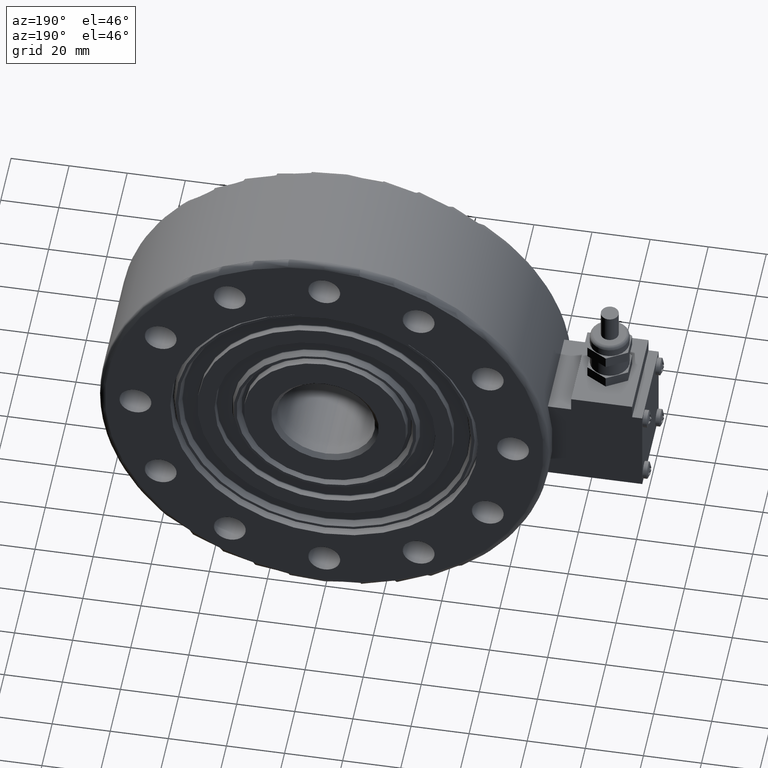
[diagram: clean part render]
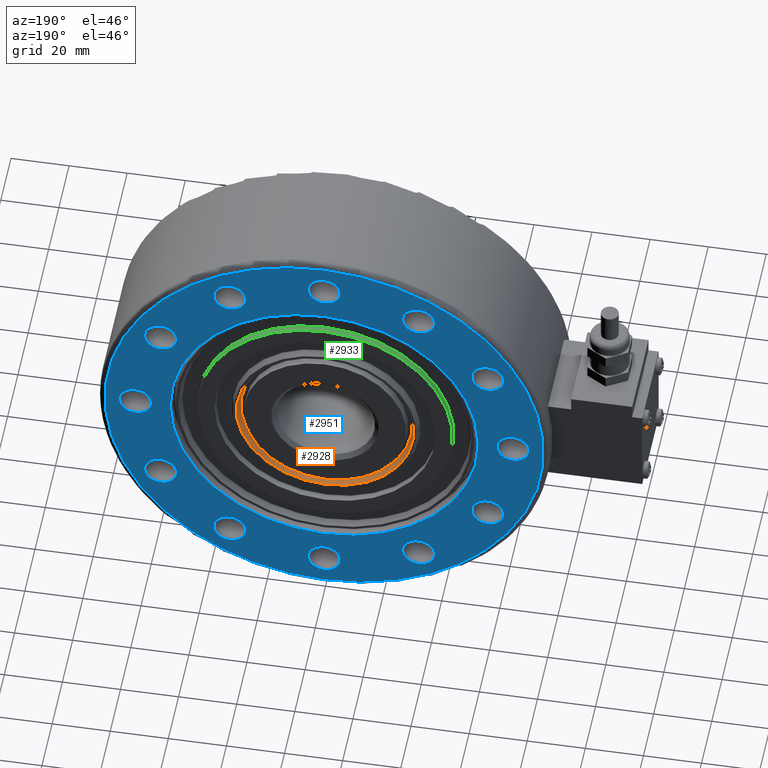
[diagram: same view with three faces highlighted in distinct colors, each labeled with its STEP entity id]
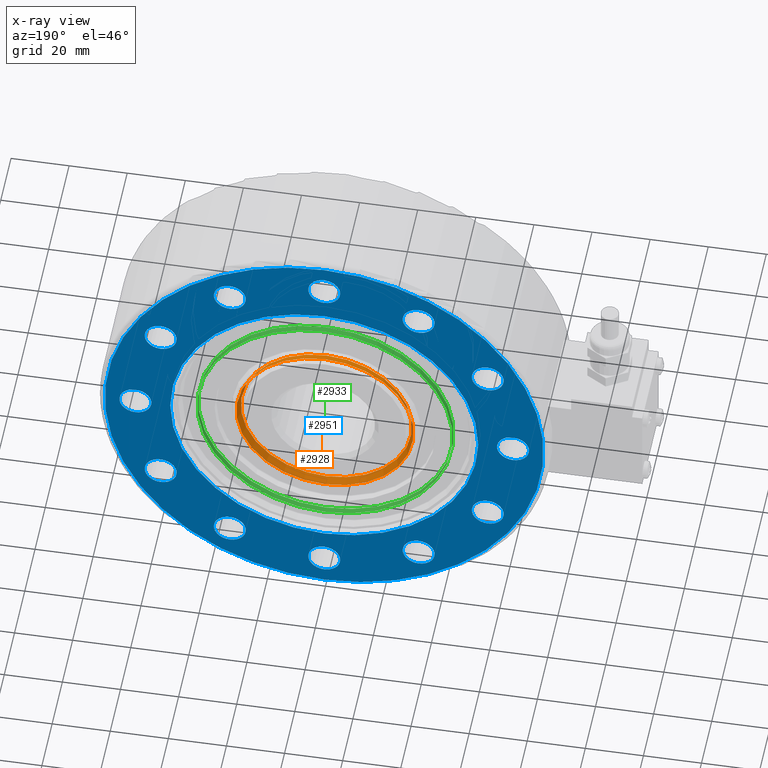
[diagram: x-ray of the same camera — body ghosted, the three highlighted faces saturated]
A machine part, auxiliary view with three faces highlighted in distinct colors.
The next image is the same camera in x-ray (body ghosted, the three faces saturated) — at least one of them is partly hidden behind the body in this view.
Their STEP definitions:

[orange] entity #2928 — the highlighted conical surface has half-angle 20 deg.
#177=CONICAL_SURFACE('',#3256,30.5,0.349065850398859);
#296=FACE_OUTER_BOUND('',#452,.T.);
#452=EDGE_LOOP('',(#2229,#2230,#2231,#2232,#2233,#2234));
#652=LINE('',#4829,#845);
#845=VECTOR('',#3843,30.5);
#1162=CIRCLE('',#3254,29.4799348219743);
#1163=CIRCLE('',#3255,29.4799348219743);
#1164=CIRCLE('',#3257,30.5);
#1165=CIRCLE('',#3258,30.5);
#1353=VERTEX_POINT('',#4822);
#1354=VERTEX_POINT('',#4824);
#1355=VERTEX_POINT('',#4828);
#1356=VERTEX_POINT('',#4830);
#1717=EDGE_CURVE('',#1353,#1354,#1162,.T.);
#1718=EDGE_CURVE('',#1354,#1353,#1163,.T.);
#1719=EDGE_CURVE('',#1353,#1355,#652,.T.);
#1720=EDGE_CURVE('',#1355,#1356,#1164,.T.);
#1721=EDGE_CURVE('',#1356,#1355,#1165,.T.);
#2229=ORIENTED_EDGE('',*,*,#1718,.F.);
#2230=ORIENTED_EDGE('',*,*,#1717,.F.);
#2231=ORIENTED_EDGE('',*,*,#1719,.T.);
#2232=ORIENTED_EDGE('',*,*,#1720,.T.);
#2233=ORIENTED_EDGE('',*,*,#1721,.T.);
#2234=ORIENTED_EDGE('',*,*,#1719,.F.);
#2928=ADVANCED_FACE('',(#296),#177,.F.);
#3254=AXIS2_PLACEMENT_3D('',#4825,#3837,#3838);
#3255=AXIS2_PLACEMENT_3D('',#4826,#3839,#3840);
#3256=AXIS2_PLACEMENT_3D('',#4827,#3841,#3842);
#3257=AXIS2_PLACEMENT_3D('',#4831,#3844,#3845);
#3258=AXIS2_PLACEMENT_3D('',#4832,#3846,#3847);
#3837=DIRECTION('center_axis',(0.,1.,0.));
#3838=DIRECTION('ref_axis',(0.,0.,1.));
#3839=DIRECTION('center_axis',(0.,1.,0.));
#3840=DIRECTION('ref_axis',(0.,0.,1.));
#3841=DIRECTION('center_axis',(0.,1.,0.));
#3842=DIRECTION('ref_axis',(0.,0.,1.));
#3843=DIRECTION('',(-4.18853873767691E-17,0.939692620785911,-0.342020143325662));
#3844=DIRECTION('center_axis',(0.,1.,0.));
#3845=DIRECTION('ref_axis',(0.,0.,1.));
#3846=DIRECTION('center_axis',(0.,1.,0.));
#3847=DIRECTION('ref_axis',(0.,0.,1.));
#4822=CARTESIAN_POINT('',(-3.61025078188034E-15,18.1973939570023,-29.4799348219743));
#4824=CARTESIAN_POINT('',(0.,18.1973939570023,29.4799348219743));
#4825=CARTESIAN_POINT('Origin',(0.,18.1973939570023,0.));
#4826=CARTESIAN_POINT('Origin',(0.,18.1973939570023,0.));
#4827=CARTESIAN_POINT('Origin',(0.,21.,0.));
#4828=CARTESIAN_POINT('',(-3.73517273739943E-15,21.,-30.5));
#4829=CARTESIAN_POINT('',(-3.73517273739943E-15,21.,-30.5));
#4830=CARTESIAN_POINT('',(0.,21.,30.5));
#4831=CARTESIAN_POINT('Origin',(0.,21.,0.));
#4832=CARTESIAN_POINT('Origin',(0.,21.,0.));

[blue] entity #2951 — the highlighted planar face has unit normal (0, -1, 0).
#29=PLANE('',#3317);
#133=FACE_BOUND('',#494,.T.);
#134=FACE_BOUND('',#495,.T.);
#135=FACE_BOUND('',#496,.T.);
#136=FACE_BOUND('',#497,.T.);
#137=FACE_BOUND('',#498,.T.);
#138=FACE_BOUND('',#499,.T.);
#139=FACE_BOUND('',#500,.T.);
#140=FACE_BOUND('',#501,.T.);
#141=FACE_BOUND('',#502,.T.);
#142=FACE_BOUND('',#503,.T.);
#143=FACE_BOUND('',#504,.T.);
#144=FACE_BOUND('',#505,.T.);
#145=FACE_BOUND('',#506,.T.);
#319=FACE_OUTER_BOUND('',#493,.T.);
#493=EDGE_LOOP('',(#2389,#2390));
#494=EDGE_LOOP('',(#2391,#2392));
#495=EDGE_LOOP('',(#2393,#2394));
#496=EDGE_LOOP('',(#2395,#2396));
#497=EDGE_LOOP('',(#2397,#2398));
#498=EDGE_LOOP('',(#2399,#2400));
#499=EDGE_LOOP('',(#2401,#2402));
#500=EDGE_LOOP('',(#2403,#2404));
#501=EDGE_LOOP('',(#2405,#2406));
#502=EDGE_LOOP('',(#2407,#2408));
#503=EDGE_LOOP('',(#2409,#2410));
#504=EDGE_LOOP('',(#2411,#2412));
#505=EDGE_LOOP('',(#2413,#2414));
#506=EDGE_LOOP('',(#2415,#2416));
#1011=CIRCLE('',#3061,53.);
#1012=CIRCLE('',#3062,53.);
#1017=CIRCLE('',#3068,75.5);
#1018=CIRCLE('',#3069,75.5);
#1057=CIRCLE('',#3121,5.5);
#1058=CIRCLE('',#3122,5.5);
#1061=CIRCLE('',#3126,5.5);
#1062=CIRCLE('',#3127,5.5);
#1065=CIRCLE('',#3131,5.5000000000018);
#1066=CIRCLE('',#3132,5.5000000000018);
#1069=CIRCLE('',#3136,5.50000000000215);
#1070=CIRCLE('',#3137,5.50000000000215);
#1073=CIRCLE('',#3141,5.50000000000229);
#1074=CIRCLE('',#3142,5.50000000000229);
#1077=CIRCLE('',#3146,5.50000000000218);
#1078=CIRCLE('',#3147,5.50000000000218);
#1081=CIRCLE('',#3151,5.50000000000188);
#1082=CIRCLE('',#3152,5.50000000000188);
#1085=CIRCLE('',#3156,5.50000000000138);
#1086=CIRCLE('',#3157,5.50000000000138);
#1089=CIRCLE('',#3161,5.5);
#1090=CIRCLE('',#3162,5.5);
#1093=CIRCLE('',#3166,5.5);
#1094=CIRCLE('',#3167,5.5);
#1097=CIRCLE('',#3171,5.50000000000001);
#1098=CIRCLE('',#3172,5.50000000000001);
#1101=CIRCLE('',#3176,5.5);
#1102=CIRCLE('',#3177,5.5);
#1209=VERTEX_POINT('',#4311);
#1210=VERTEX_POINT('',#4313);
#1213=VERTEX_POINT('',#4322);
#1214=VERTEX_POINT('',#4324);
#1257=VERTEX_POINT('',#4574);
#1258=VERTEX_POINT('',#4576);
#1261=VERTEX_POINT('',#4584);
#1262=VERTEX_POINT('',#4586);
#1265=VERTEX_POINT('',#4594);
#1266=VERTEX_POINT('',#4596);
#1269=VERTEX_POINT('',#4604);
#1270=VERTEX_POINT('',#4606);
#1273=VERTEX_POINT('',#4614);
#1274=VERTEX_POINT('',#4616);
#1277=VERTEX_POINT('',#4624);
#1278=VERTEX_POINT('',#4626);
#1281=VERTEX_POINT('',#4634);
#1282=VERTEX_POINT('',#4636);
#1285=VERTEX_POINT('',#4644);
#1286=VERTEX_POINT('',#4646);
#1289=VERTEX_POINT('',#4654);
#1290=VERTEX_POINT('',#4656);
#1293=VERTEX_POINT('',#4664);
#1294=VERTEX_POINT('',#4666);
#1297=VERTEX_POINT('',#4674);
#1298=VERTEX_POINT('',#4676);
#1301=VERTEX_POINT('',#4684);
#1302=VERTEX_POINT('',#4686);
#1530=EDGE_CURVE('',#1209,#1210,#1011,.T.);
#1531=EDGE_CURVE('',#1210,#1209,#1012,.T.);
#1536=EDGE_CURVE('',#1214,#1213,#1017,.T.);
#1537=EDGE_CURVE('',#1213,#1214,#1018,.T.);
#1593=EDGE_CURVE('',#1257,#1258,#1057,.T.);
#1594=EDGE_CURVE('',#1258,#1257,#1058,.T.);
#1598=EDGE_CURVE('',#1261,#1262,#1061,.T.);
#1599=EDGE_CURVE('',#1262,#1261,#1062,.T.);
#1603=EDGE_CURVE('',#1265,#1266,#1065,.T.);
#1604=EDGE_CURVE('',#1266,#1265,#1066,.T.);
#1608=EDGE_CURVE('',#1269,#1270,#1069,.T.);
#1609=EDGE_CURVE('',#1270,#1269,#1070,.T.);
#1613=EDGE_CURVE('',#1273,#1274,#1073,.T.);
#1614=EDGE_CURVE('',#1274,#1273,#1074,.T.);
#1618=EDGE_CURVE('',#1277,#1278,#1077,.T.);
#1619=EDGE_CURVE('',#1278,#1277,#1078,.T.);
#1623=EDGE_CURVE('',#1281,#1282,#1081,.T.);
#1624=EDGE_CURVE('',#1282,#1281,#1082,.T.);
#1628=EDGE_CURVE('',#1285,#1286,#1085,.T.);
#1629=EDGE_CURVE('',#1286,#1285,#1086,.T.);
#1633=EDGE_CURVE('',#1289,#1290,#1089,.T.);
#1634=EDGE_CURVE('',#1290,#1289,#1090,.T.);
#1638=EDGE_CURVE('',#1293,#1294,#1093,.T.);
#1639=EDGE_CURVE('',#1294,#1293,#1094,.T.);
#1643=EDGE_CURVE('',#1297,#1298,#1097,.T.);
#1644=EDGE_CURVE('',#1298,#1297,#1098,.T.);
#1648=EDGE_CURVE('',#1301,#1302,#1101,.T.);
#1649=EDGE_CURVE('',#1302,#1301,#1102,.T.);
#2389=ORIENTED_EDGE('',*,*,#1536,.T.);
#2390=ORIENTED_EDGE('',*,*,#1537,.T.);
#2391=ORIENTED_EDGE('',*,*,#1594,.F.);
#2392=ORIENTED_EDGE('',*,*,#1593,.F.);
#2393=ORIENTED_EDGE('',*,*,#1599,.F.);
#2394=ORIENTED_EDGE('',*,*,#1598,.F.);
#2395=ORIENTED_EDGE('',*,*,#1604,.F.);
#2396=ORIENTED_EDGE('',*,*,#1603,.F.);
#2397=ORIENTED_EDGE('',*,*,#1609,.F.);
#2398=ORIENTED_EDGE('',*,*,#1608,.F.);
#2399=ORIENTED_EDGE('',*,*,#1614,.F.);
#2400=ORIENTED_EDGE('',*,*,#1613,.F.);
#2401=ORIENTED_EDGE('',*,*,#1619,.F.);
#2402=ORIENTED_EDGE('',*,*,#1618,.F.);
#2403=ORIENTED_EDGE('',*,*,#1624,.F.);
#2404=ORIENTED_EDGE('',*,*,#1623,.F.);
#2405=ORIENTED_EDGE('',*,*,#1629,.F.);
#2406=ORIENTED_EDGE('',*,*,#1628,.F.);
#2407=ORIENTED_EDGE('',*,*,#1634,.F.);
#2408=ORIENTED_EDGE('',*,*,#1633,.F.);
#2409=ORIENTED_EDGE('',*,*,#1639,.F.);
#2410=ORIENTED_EDGE('',*,*,#1638,.F.);
#2411=ORIENTED_EDGE('',*,*,#1644,.F.);
#2412=ORIENTED_EDGE('',*,*,#1643,.F.);
#2413=ORIENTED_EDGE('',*,*,#1649,.F.);
#2414=ORIENTED_EDGE('',*,*,#1648,.F.);
#2415=ORIENTED_EDGE('',*,*,#1531,.F.);
#2416=ORIENTED_EDGE('',*,*,#1530,.F.);
#2951=ADVANCED_FACE('',(#319,#133,#134,#135,#136,#137,#138,#139,#140,#141,
#142,#143,#144,#145),#29,.F.);
#3061=AXIS2_PLACEMENT_3D('',#4314,#3421,#3422);
#3062=AXIS2_PLACEMENT_3D('',#4315,#3423,#3424);
#3068=AXIS2_PLACEMENT_3D('',#4325,#3435,#3436);
#3069=AXIS2_PLACEMENT_3D('',#4326,#3437,#3438);
#3121=AXIS2_PLACEMENT_3D('',#4577,#3552,#3553);
#3122=AXIS2_PLACEMENT_3D('',#4578,#3554,#3555);
#3126=AXIS2_PLACEMENT_3D('',#4587,#3563,#3564);
#3127=AXIS2_PLACEMENT_3D('',#4588,#3565,#3566);
#3131=AXIS2_PLACEMENT_3D('',#4597,#3574,#3575);
#3132=AXIS2_PLACEMENT_3D('',#4598,#3576,#3577);
#3136=AXIS2_PLACEMENT_3D('',#4607,#3585,#3586);
#3137=AXIS2_PLACEMENT_3D('',#4608,#3587,#3588);
#3141=AXIS2_PLACEMENT_3D('',#4617,#3596,#3597);
#3142=AXIS2_PLACEMENT_3D('',#4618,#3598,#3599);
#3146=AXIS2_PLACEMENT_3D('',#4627,#3607,#3608);
#3147=AXIS2_PLACEMENT_3D('',#4628,#3609,#3610);
#3151=AXIS2_PLACEMENT_3D('',#4637,#3618,#3619);
#3152=AXIS2_PLACEMENT_3D('',#4638,#3620,#3621);
#3156=AXIS2_PLACEMENT_3D('',#4647,#3629,#3630);
#3157=AXIS2_PLACEMENT_3D('',#4648,#3631,#3632);
#3161=AXIS2_PLACEMENT_3D('',#4657,#3640,#3641);
#3162=AXIS2_PLACEMENT_3D('',#4658,#3642,#3643);
#3166=AXIS2_PLACEMENT_3D('',#4667,#3651,#3652);
#3167=AXIS2_PLACEMENT_3D('',#4668,#3653,#3654);
#3171=AXIS2_PLACEMENT_3D('',#4677,#3662,#3663);
#3172=AXIS2_PLACEMENT_3D('',#4678,#3664,#3665);
#3176=AXIS2_PLACEMENT_3D('',#4687,#3673,#3674);
#3177=AXIS2_PLACEMENT_3D('',#4688,#3675,#3676);
#3317=AXIS2_PLACEMENT_3D('',#5223,#3994,#3995);
#3421=DIRECTION('center_axis',(0.,1.,0.));
#3422=DIRECTION('ref_axis',(0.,0.,1.));
#3423=DIRECTION('center_axis',(0.,1.,0.));
#3424=DIRECTION('ref_axis',(0.,0.,1.));
#3435=DIRECTION('center_axis',(0.,1.,0.));
#3436=DIRECTION('ref_axis',(0.,0.,-1.));
#3437=DIRECTION('center_axis',(0.,1.,0.));
#3438=DIRECTION('ref_axis',(0.,0.,-1.));
#3552=DIRECTION('center_axis',(0.,1.,0.));
#3553=DIRECTION('ref_axis',(0.,0.,1.));
#3554=DIRECTION('center_axis',(0.,1.,0.));
#3555=DIRECTION('ref_axis',(0.,0.,1.));
#3563=DIRECTION('center_axis',(0.,1.,0.));
#3564=DIRECTION('ref_axis',(0.,0.,1.));
#3565=DIRECTION('center_axis',(0.,1.,0.));
#3566=DIRECTION('ref_axis',(0.,0.,1.));
#3574=DIRECTION('center_axis',(0.,1.,0.));
#3575=DIRECTION('ref_axis',(0.,0.,1.));
#3576=DIRECTION('center_axis',(0.,1.,0.));
#3577=DIRECTION('ref_axis',(0.,0.,1.));
#3585=DIRECTION('center_axis',(0.,1.,0.));
#3586=DIRECTION('ref_axis',(0.,0.,1.));
#3587=DIRECTION('center_axis',(0.,1.,0.));
#3588=DIRECTION('ref_axis',(0.,0.,1.));
#3596=DIRECTION('center_axis',(0.,1.,0.));
#3597=DIRECTION('ref_axis',(0.,0.,1.));
#3598=DIRECTION('center_axis',(0.,1.,0.));
#3599=DIRECTION('ref_axis',(0.,0.,1.));
#3607=DIRECTION('center_axis',(0.,1.,0.));
#3608=DIRECTION('ref_axis',(0.,0.,1.));
#3609=DIRECTION('center_axis',(0.,1.,0.));
#3610=DIRECTION('ref_axis',(0.,0.,1.));
#3618=DIRECTION('center_axis',(0.,1.,0.));
#3619=DIRECTION('ref_axis',(0.,0.,1.));
#3620=DIRECTION('center_axis',(0.,1.,0.));
#3621=DIRECTION('ref_axis',(0.,0.,1.));
#3629=DIRECTION('center_axis',(0.,1.,0.));
#3630=DIRECTION('ref_axis',(0.,0.,1.));
#3631=DIRECTION('center_axis',(0.,1.,0.));
#3632=DIRECTION('ref_axis',(0.,0.,1.));
#3640=DIRECTION('center_axis',(0.,1.,0.));
#3641=DIRECTION('ref_axis',(0.,0.,1.));
#3642=DIRECTION('center_axis',(0.,1.,0.));
#3643=DIRECTION('ref_axis',(0.,0.,1.));
#3651=DIRECTION('center_axis',(0.,1.,0.));
#3652=DIRECTION('ref_axis',(0.,0.,1.));
#3653=DIRECTION('center_axis',(0.,1.,0.));
#3654=DIRECTION('ref_axis',(0.,0.,1.));
#3662=DIRECTION('center_axis',(0.,1.,0.));
#3663=DIRECTION('ref_axis',(0.,0.,1.));
#3664=DIRECTION('center_axis',(0.,1.,0.));
#3665=DIRECTION('ref_axis',(0.,0.,1.));
#3673=DIRECTION('center_axis',(0.,1.,0.));
#3674=DIRECTION('ref_axis',(0.,0.,1.));
#3675=DIRECTION('center_axis',(0.,1.,0.));
#3676=DIRECTION('ref_axis',(0.,0.,1.));
#3994=DIRECTION('center_axis',(0.,-1.,0.));
#3995=DIRECTION('ref_axis',(0.,0.,-1.));
#4311=CARTESIAN_POINT('',(-6.49062803548097E-15,22.4999999999272,-53.));
#4313=CARTESIAN_POINT('',(0.,22.5,53.));
#4314=CARTESIAN_POINT('Origin',(0.,22.5,0.));
#4315=CARTESIAN_POINT('Origin',(0.,22.5,0.));
#4322=CARTESIAN_POINT('',(-9.24608333356251E-15,22.5,75.5));
#4324=CARTESIAN_POINT('',(0.,22.5,-75.5));
#4325=CARTESIAN_POINT('Origin',(0.,22.5,0.));
#4326=CARTESIAN_POINT('Origin',(0.,22.5,0.));
#4574=CARTESIAN_POINT('',(-32.4999999999993,22.5,-61.7916512459889));
#4576=CARTESIAN_POINT('',(-32.4999999999993,22.5,-50.7916512459889));
#4577=CARTESIAN_POINT('Origin',(-32.4999999999993,22.5,-56.2916512459889));
#4578=CARTESIAN_POINT('Origin',(-32.4999999999993,22.5,-56.2916512459889));
#4584=CARTESIAN_POINT('',(-56.2916512459881,22.5,-38.0000000000007));
#4586=CARTESIAN_POINT('',(-56.2916512459881,22.5,-27.0000000000007));
#4587=CARTESIAN_POINT('Origin',(-56.2916512459881,22.5,-32.5000000000007));
#4588=CARTESIAN_POINT('Origin',(-56.2916512459881,22.5,-32.5000000000007));
#4594=CARTESIAN_POINT('',(-64.9999999999991,22.5,-5.50000000000088));
#4596=CARTESIAN_POINT('',(-64.9999999999991,22.5,5.50000000000273));
#4597=CARTESIAN_POINT('Origin',(-64.9999999999991,22.5,9.2370555648813E-13));
#4598=CARTESIAN_POINT('Origin',(-64.9999999999991,22.5,9.2370555648813E-13));
#4604=CARTESIAN_POINT('',(-56.2916512459871,22.5,26.9999999999987));
#4606=CARTESIAN_POINT('',(-56.2916512459871,22.5,38.000000000003));
#4607=CARTESIAN_POINT('Origin',(-56.2916512459871,22.5,32.5000000000008));
#4608=CARTESIAN_POINT('Origin',(-56.2916512459871,22.5,32.5000000000008));
#4614=CARTESIAN_POINT('',(-32.4999999999983,22.5,50.7916512459867));
#4616=CARTESIAN_POINT('',(-32.4999999999983,22.5,61.7916512459913));
#4617=CARTESIAN_POINT('Origin',(-32.4999999999983,22.5,56.291651245989));
#4618=CARTESIAN_POINT('Origin',(-32.4999999999983,22.5,56.291651245989));
#4624=CARTESIAN_POINT('',(1.83081714884781E-12,22.5,59.4999999999978));
#4626=CARTESIAN_POINT('',(1.83149070458734E-12,22.5,70.5000000000022));
#4627=CARTESIAN_POINT('Origin',(1.83149070458734E-12,22.5,65.));
#4628=CARTESIAN_POINT('Origin',(1.83149070458734E-12,22.5,65.));
#4634=CARTESIAN_POINT('',(32.5000000000017,22.5,50.7916512459862));
#4636=CARTESIAN_POINT('',(32.5000000000017,22.5,61.7916512459899));
#4637=CARTESIAN_POINT('Origin',(32.5000000000017,22.5,56.2916512459881));
#4638=CARTESIAN_POINT('Origin',(32.5000000000017,22.5,56.2916512459881));
#4644=CARTESIAN_POINT('',(56.2916512459899,22.5,26.9999999999978));
#4646=CARTESIAN_POINT('',(56.2916512459899,22.5,38.0000000000006));
#4647=CARTESIAN_POINT('Origin',(56.2916512459899,22.5,32.4999999999992));
#4648=CARTESIAN_POINT('Origin',(56.2916512459899,22.5,32.4999999999992));
#4654=CARTESIAN_POINT('',(65.,22.5,-5.49999999999978));
#4656=CARTESIAN_POINT('',(65.,22.5,5.50000000000023));
#4657=CARTESIAN_POINT('Origin',(65.,22.5,2.26946287024804E-13));
#4658=CARTESIAN_POINT('Origin',(65.,22.5,2.26946287024804E-13));
#4664=CARTESIAN_POINT('',(56.2916512459886,22.5,-37.9999999999999));
#4666=CARTESIAN_POINT('',(56.2916512459886,22.5,-26.9999999999999));
#4667=CARTESIAN_POINT('Origin',(56.2916512459886,22.5,-32.4999999999999));
#4668=CARTESIAN_POINT('Origin',(56.2916512459886,22.5,-32.4999999999999));
#4674=CARTESIAN_POINT('',(32.5000000000001,22.5,-61.7916512459885));
#4676=CARTESIAN_POINT('',(32.5000000000001,22.5,-50.7916512459885));
#4677=CARTESIAN_POINT('Origin',(32.5000000000001,22.5,-56.2916512459885));
#4678=CARTESIAN_POINT('Origin',(32.5000000000001,22.5,-56.2916512459885));
#4684=CARTESIAN_POINT('',(-6.73555739531044E-16,22.5,-70.5));
#4686=CARTESIAN_POINT('',(0.,22.5,-59.5));
#4687=CARTESIAN_POINT('Origin',(0.,22.5,-65.));
#4688=CARTESIAN_POINT('Origin',(0.,22.5,-65.));
#5223=CARTESIAN_POINT('Origin',(54.,22.5,0.));

[green] entity #2933 — the highlighted cylindrical surface (bore or boss wall) has radius 44 mm, axis along (0, 1, 0).
#301=FACE_OUTER_BOUND('',#457,.T.);
#457=EDGE_LOOP('',(#2259,#2260,#2261,#2262,#2263,#2264));
#655=LINE('',#4871,#848);
#848=VECTOR('',#3892,44.);
#1180=CIRCLE('',#3278,44.);
#1181=CIRCLE('',#3279,44.);
#1182=CIRCLE('',#3280,44.);
#1183=CIRCLE('',#3281,44.);
#1369=VERTEX_POINT('',#4866);
#1370=VERTEX_POINT('',#4867);
#1371=VERTEX_POINT('',#4870);
#1372=VERTEX_POINT('',#4872);
#1738=EDGE_CURVE('',#1369,#1370,#1180,.T.);
#1739=EDGE_CURVE('',#1370,#1369,#1181,.T.);
#1740=EDGE_CURVE('',#1370,#1371,#655,.T.);
#1741=EDGE_CURVE('',#1371,#1372,#1182,.T.);
#1742=EDGE_CURVE('',#1372,#1371,#1183,.T.);
#2259=ORIENTED_EDGE('',*,*,#1738,.F.);
#2260=ORIENTED_EDGE('',*,*,#1739,.F.);
#2261=ORIENTED_EDGE('',*,*,#1740,.T.);
#2262=ORIENTED_EDGE('',*,*,#1741,.T.);
#2263=ORIENTED_EDGE('',*,*,#1742,.T.);
#2264=ORIENTED_EDGE('',*,*,#1740,.F.);
#2882=CYLINDRICAL_SURFACE('',#3277,44.);
#2933=ADVANCED_FACE('',(#301),#2882,.T.);
#3277=AXIS2_PLACEMENT_3D('',#4865,#3886,#3887);
#3278=AXIS2_PLACEMENT_3D('',#4868,#3888,#3889);
#3279=AXIS2_PLACEMENT_3D('',#4869,#3890,#3891);
#3280=AXIS2_PLACEMENT_3D('',#4873,#3893,#3894);
#3281=AXIS2_PLACEMENT_3D('',#4874,#3895,#3896);
#3886=DIRECTION('center_axis',(0.,1.,0.));
#3887=DIRECTION('ref_axis',(0.,0.,1.));
#3888=DIRECTION('center_axis',(0.,1.,0.));
#3889=DIRECTION('ref_axis',(0.,0.,1.));
#3890=DIRECTION('center_axis',(0.,1.,0.));
#3891=DIRECTION('ref_axis',(0.,0.,1.));
#3892=DIRECTION('',(0.,-1.,0.));
#3893=DIRECTION('center_axis',(0.,1.,0.));
#3894=DIRECTION('ref_axis',(0.,0.,1.));
#3895=DIRECTION('center_axis',(0.,1.,0.));
#3896=DIRECTION('ref_axis',(0.,0.,1.));
#4865=CARTESIAN_POINT('Origin',(0.,32.1739912014965,0.));
#4866=CARTESIAN_POINT('',(0.,21.,44.));
#4867=CARTESIAN_POINT('',(-5.38844591624835E-15,21.,-44.));
#4868=CARTESIAN_POINT('Origin',(0.,21.,0.));
#4869=CARTESIAN_POINT('Origin',(0.,21.,0.));
#4870=CARTESIAN_POINT('',(-5.38844591624835E-15,18.9,-44.));
#4871=CARTESIAN_POINT('',(-5.38844591624835E-15,32.1739912014965,-44.));
#4872=CARTESIAN_POINT('',(0.,18.9,44.));
#4873=CARTESIAN_POINT('Origin',(0.,18.9,0.));
#4874=CARTESIAN_POINT('Origin',(0.,18.9,0.));